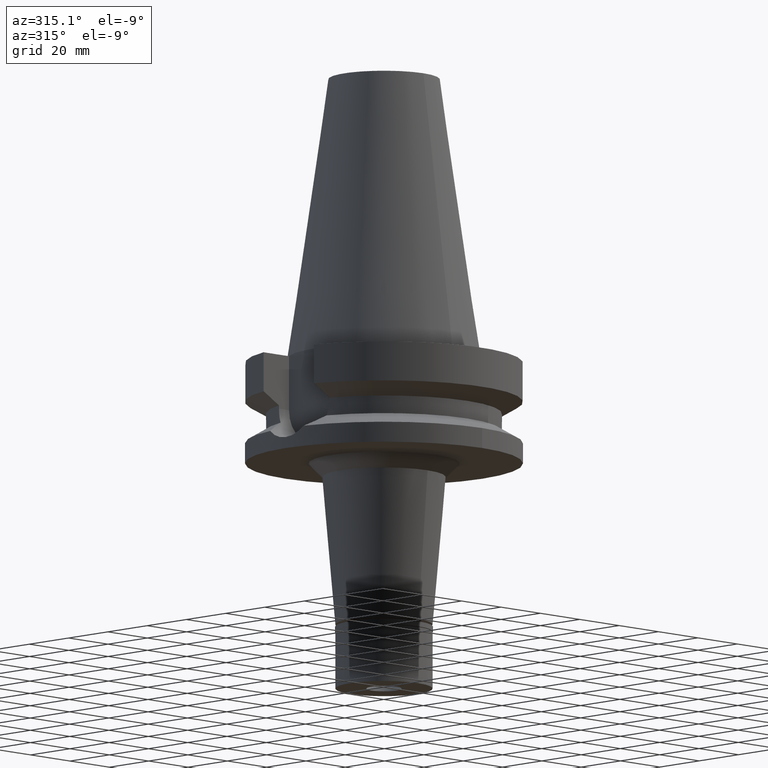
[diagram: clean part render]
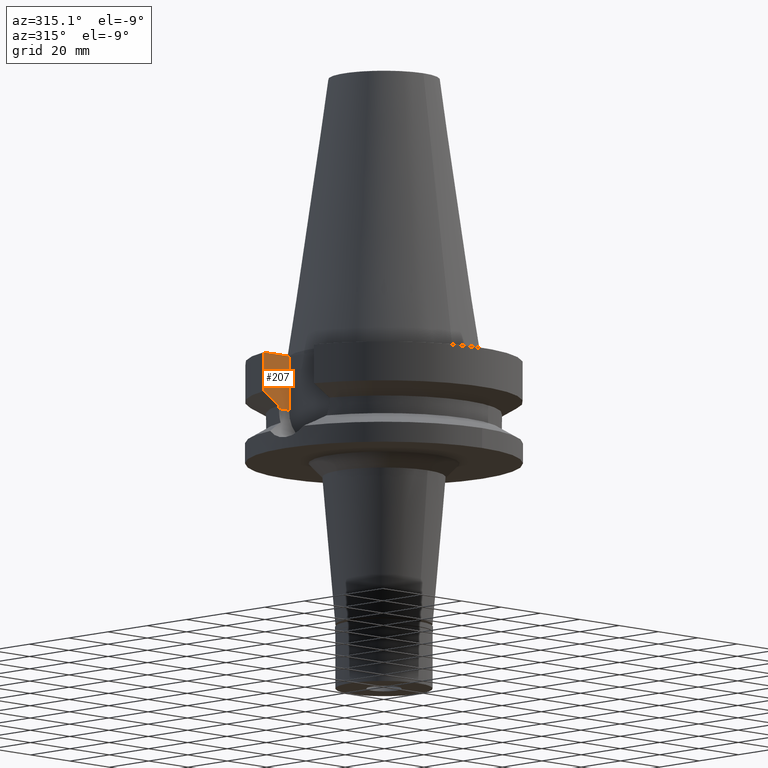
[diagram: same view with one face highlighted and labeled with its STEP entity id]
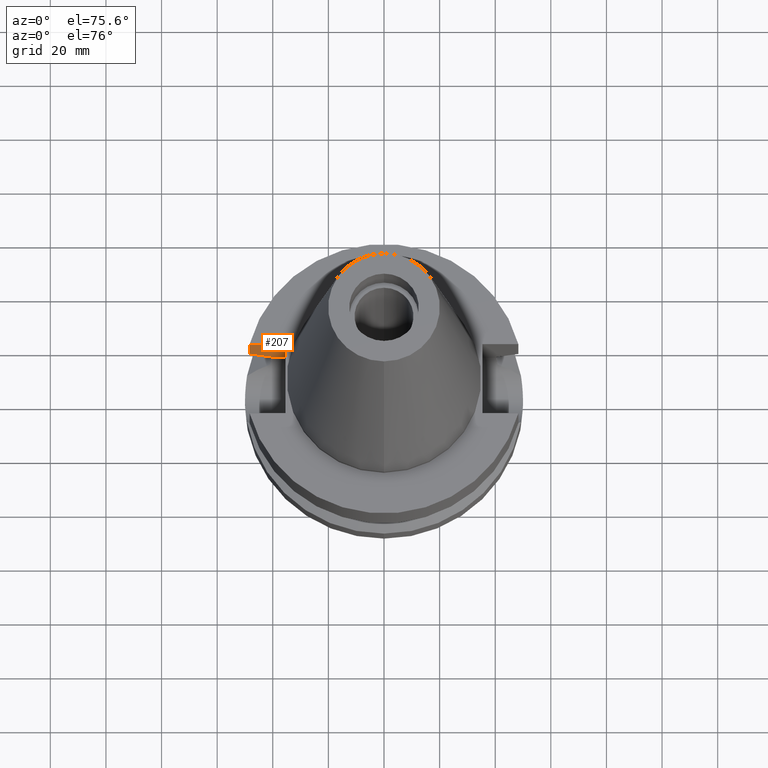
[diagram: same view with one face highlighted and labeled with its STEP entity id]
A machine part, auxiliary view. The second image highlights one B-rep face of the part: STEP entity #207.
A second angle (auxiliary view) of the same face is appended — the face is thin or edge-on in the first view.
In plain terms, the highlighted planar face has unit normal (0, 1, 0).
Its self-contained STEP definition (entity closure, byte-faithful):
#7 = VECTOR ( 'NONE', #1333, 999.9999999999998863 ) ;
#91 = CARTESIAN_POINT ( 'NONE',  ( -40.51083188481999997, 12.84999999999999964, -21.14999999999999858 ) ) ;
#161 = LINE ( 'NONE', #2586, #7 ) ;
#169 = VECTOR ( 'NONE', #2617, 1000.000000000000114 ) ;
#207 = ADVANCED_FACE ( 'NONE', ( #1265 ), #1280, .F. ) ;
#346 = EDGE_CURVE ( 'NONE', #2277, #1770, #1638, .T. ) ;
#347 = ORIENTED_EDGE ( 'NONE', *, *, #2371, .T. ) ;
#382 = EDGE_CURVE ( 'NONE', #2280, #2502, #2104, .T. ) ;
#386 = CARTESIAN_POINT ( 'NONE',  ( -40.51083188481999997, 12.84999999999999964, -19.99281925464999787 ) ) ;
#519 = VECTOR ( 'NONE', #576, 1000.000000000000000 ) ;
#576 = DIRECTION ( 'NONE',  ( -1.000000000000000000, 0.0000000000000000000, 0.0000000000000000000 ) ) ;
#593 = LINE ( 'NONE', #2082, #519 ) ;
#604 = DIRECTION ( 'NONE',  ( 1.000000000000000000, 0.0000000000000000000, 0.0000000000000000000 ) ) ;
#634 = B_SPLINE_CURVE_WITH_KNOTS ( 'NONE', 3,
 ( #1440, #1665, #3085, #672 ),
 .UNSPECIFIED., .F., .F.,
 ( 4, 4 ),
 ( 0.0000000000000000000, 1.000000000000000000 ),
 .UNSPECIFIED. ) ;
#672 = CARTESIAN_POINT ( 'NONE',  ( -48.32056912851000163, 12.85000385589999894, -15.66265769487000092 ) ) ;
#727 = VECTOR ( 'NONE', #860, 1000.000000000000000 ) ;
#860 = DIRECTION ( 'NONE',  ( 0.0000000000000000000, 0.0000000000000000000, 1.000000000000000000 ) ) ;
#926 = VECTOR ( 'NONE', #2044, 1000.000000000000000 ) ;
#997 = EDGE_LOOP ( 'NONE', ( #347, #1660, #1834, #1998, #3002, #2337 ) ) ;
#1039 = CARTESIAN_POINT ( 'NONE',  ( -40.51083188481999997, 12.84999999999999964, -21.14999999999999858 ) ) ;
#1265 = FACE_OUTER_BOUND ( 'NONE', #997, .T. ) ;
#1269 = EDGE_CURVE ( 'NONE', #1766, #1770, #634, .T. ) ;
#1280 = PLANE ( 'NONE',  #2361 ) ;
#1315 = LINE ( 'NONE', #91, #926 ) ;
#1333 = DIRECTION ( 'NONE',  ( 9.455988046055095487E-07, 2.981091566150031807E-06, -0.9999999999951095786 ) ) ;
#1440 = CARTESIAN_POINT ( 'NONE',  ( -40.51083188481999997, 12.84999999999999964, -19.99281925464999787 ) ) ;
#1561 = VERTEX_POINT ( 'NONE', #1039 ) ;
#1638 = LINE ( 'NONE', #2817, #169 ) ;
#1660 = ORIENTED_EDGE ( 'NONE', *, *, #382, .T. ) ;
#1665 = CARTESIAN_POINT ( 'NONE',  ( -42.90863201100567892, 12.84999309438956061, -18.67324386311097584 ) ) ;
#1766 = VERTEX_POINT ( 'NONE', #386 ) ;
#1770 = VERTEX_POINT ( 'NONE', #2840 ) ;
#1834 = ORIENTED_EDGE ( 'NONE', *, *, #2814, .T. ) ;
#1871 = CARTESIAN_POINT ( 'NONE',  ( -48.32057015392000210, 12.84999999999999964, -1.500000000000000000 ) ) ;
#1998 = ORIENTED_EDGE ( 'NONE', *, *, #346, .T. ) ;
#2044 = DIRECTION ( 'NONE',  ( 1.000000000000000000, 3.440913946376999995E-14, 0.0000000000000000000 ) ) ;
#2050 = CARTESIAN_POINT ( 'NONE',  ( -35.39999999999999858, 12.84999999999999964, -1.500000000000000000 ) ) ;
#2082 = CARTESIAN_POINT ( 'NONE',  ( -35.39999999999999858, 12.84999999999999964, -1.500000000000000000 ) ) ;
#2104 = LINE ( 'NONE', #3092, #727 ) ;
#2258 = DIRECTION ( 'NONE',  ( -0.0000000000000000000, 1.000000000000000000, 0.0000000000000000000 ) ) ;
#2277 = VERTEX_POINT ( 'NONE', #1871 ) ;
#2280 = VERTEX_POINT ( 'NONE', #3055 ) ;
#2300 = EDGE_CURVE ( 'NONE', #1766, #1561, #161, .T. ) ;
#2337 = ORIENTED_EDGE ( 'NONE', *, *, #2300, .T. ) ;
#2361 = AXIS2_PLACEMENT_3D ( 'NONE', #2050, #2258, #604 ) ;
#2371 = EDGE_CURVE ( 'NONE', #1561, #2280, #1315, .T. ) ;
#2502 = VERTEX_POINT ( 'NONE', #3114 ) ;
#2586 = CARTESIAN_POINT ( 'NONE',  ( -40.51083297902000169, 12.84999655042000022, -19.99284572779999891 ) ) ;
#2617 = DIRECTION ( 'NONE',  ( 7.240236072522711899E-08, 2.722584475181890901E-07, -0.9999999999999603650 ) ) ;
#2814 = EDGE_CURVE ( 'NONE', #2502, #2277, #593, .T. ) ;
#2817 = CARTESIAN_POINT ( 'NONE',  ( -48.32057015392000210, 12.84999999999999964, -1.500000000000000000 ) ) ;
#2840 = CARTESIAN_POINT ( 'NONE',  ( -48.32056912851000163, 12.85000385589999894, -15.66265769487000092 ) ) ;
#3002 = ORIENTED_EDGE ( 'NONE', *, *, #1269, .F. ) ;
#3055 = CARTESIAN_POINT ( 'NONE',  ( -35.39999999999999858, 12.84999999999999964, -21.14999999999999858 ) ) ;
#3085 = CARTESIAN_POINT ( 'NONE',  ( -45.51180270081449919, 12.85000770715784491, -17.22986500287450085 ) ) ;
#3092 = CARTESIAN_POINT ( 'NONE',  ( -35.39999999999999858, 12.84999999999999964, -21.14999999999999858 ) ) ;
#3114 = CARTESIAN_POINT ( 'NONE',  ( -35.39999999999999858, 12.84999999999999964, -1.500000000000000000 ) ) ;